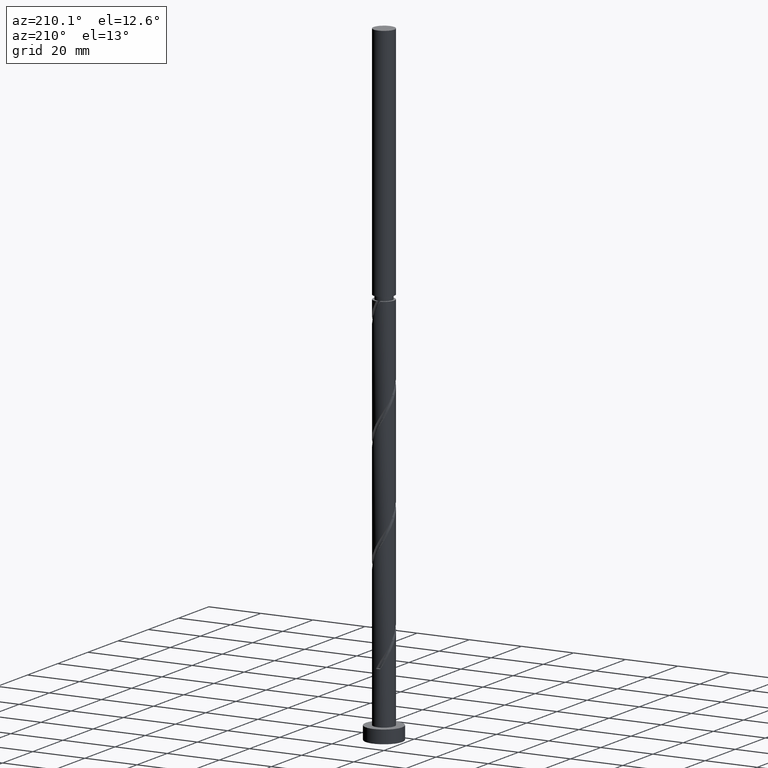
[diagram: clean part render]
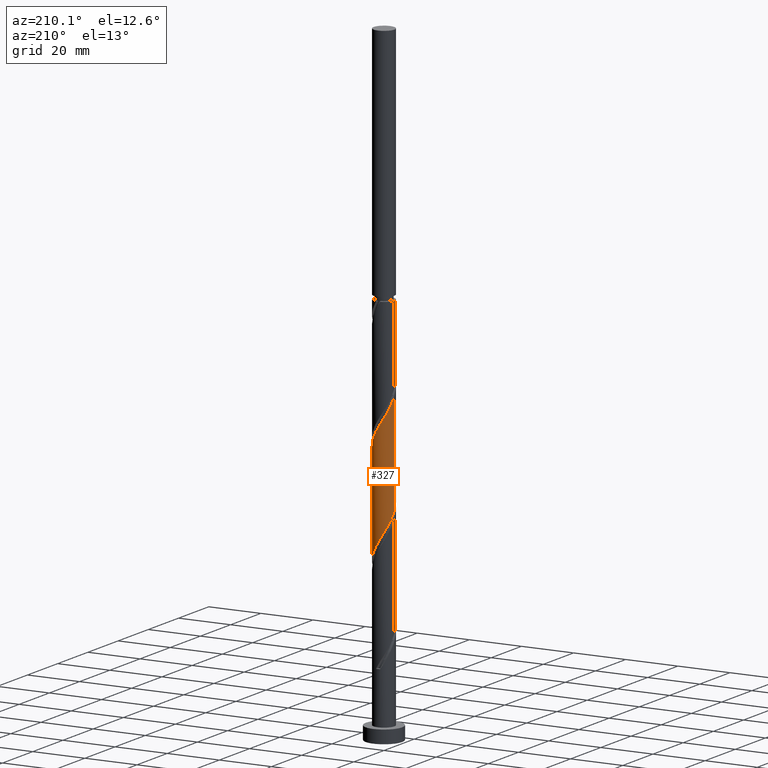
[diagram: same view with one face highlighted and labeled with its STEP entity id]
A machine part, auxiliary view. The second image highlights one B-rep face of the part: STEP entity #327.
In plain terms, the highlighted cylindrical surface (edge-blend (fillet) strip) has radius 4 mm, axis along (-0, -0, -1).
Its self-contained STEP definition (entity closure, byte-faithful):
#67 = AXIS2_PLACEMENT_3D ( 'NONE', #1332, #1054, #1616 ) ;
#72 = CARTESIAN_POINT ( 'NONE',  ( 2.003633787528303234, 3.462001104198990209, 103.3905300311497228 ) ) ;
#78 = EDGE_CURVE ( 'NONE', #202, #965, #1245, .T. ) ;
#82 = CARTESIAN_POINT ( 'NONE',  ( 0.1652574756069173367, 3.996584787885284928, 106.5956582362779415 ) ) ;
#119 = CARTESIAN_POINT ( 'NONE',  ( -3.383001745131677840, 2.134314689176838531, 74.54437618499586904 ) ) ;
#192 = CARTESIAN_POINT ( 'NONE',  ( -3.947525597521978291, 0.6457876252366431258, 116.2110428516625689 ) ) ;
#202 = VERTEX_POINT ( 'NONE', #1017 ) ;
#209 = CARTESIAN_POINT ( 'NONE',  ( -4.000000000000004441, 0.3250257541481827994, 116.7472663922685143 ) ) ;
#212 = CARTESIAN_POINT ( 'NONE',  ( 1.710977332407543017, 3.615599060734965953, 64.92899156961127005 ) ) ;
#216 = VECTOR ( 'NONE', #1804, 1000.000000000000000 ) ;
#220 = CARTESIAN_POINT ( 'NONE',  ( 3.487428383617967587, 2.018349830254855259, 60.92258131320101455 ) ) ;
#224 = CARTESIAN_POINT ( 'NONE',  ( -3.123849022751424620, 2.545085470315094689, 73.74309413371383926 ) ) ;
#233 = CARTESIAN_POINT ( 'NONE',  ( -2.773922925134609585, 2.881900693190634133, 72.94181208243178105 ) ) ;
#278 = EDGE_LOOP ( 'NONE', ( #1163, #1763, #817, #701 ) ) ;
#307 =( BOUNDED_CURVE ( )  B_SPLINE_CURVE ( 2, ( #506, #828, #973, #366, #1537, #1390, #119, #224, #233, #518, #1373, #1224, #1808, #631, #1093, #1657, #1107, #397, #212, #407, #1327, #667, #1340, #220, #1759, #1361, #935, #1631, #1083 ),
 .UNSPECIFIED., .F., .T. ) 
 B_SPLINE_CURVE_WITH_KNOTS ( ( 3, 2, 2, 2, 2, 2, 2, 2, 2, 2, 2, 2, 2, 2, 3 ),
 ( 0.6795271625973833274, 0.6826923076923077094, 0.6923076923076922906, 0.7019230769230768718, 0.7115384615384615641, 0.7211538461538461453, 0.7307692307692307265, 0.7403846153846154188, 0.7500000000000000000, 0.7596153846153845812, 0.7692307692307692735, 0.7788461538461538547, 0.7884615384615384359, 0.7980769230769231282, 0.8045271625973832164 ),
 .UNSPECIFIED. ) 
 CURVE ( )  GEOMETRIC_REPRESENTATION_ITEM ( )  RATIONAL_B_SPLINE_CURVE ( ( 0.9061636035682713031, 0.9069090390690599524, 0.9090909090909164991, 0.9024626128164200400, 0.9090909090909164991, 0.9024626128164200400, 0.9090909090909164991, 0.9024626128164200400, 0.9090909090909164991, 0.9024626128164200400, 0.9090909090909164991, 0.9024626128164200400, 0.9090909090909164991, 0.9024626128164200400, 0.9090909090909164991, 0.9024626128164200400, 0.9090909090909164991, 0.9024626128164200400, 0.9090909090909164991, 0.9024626128164200400, 0.9090909090909164991, 0.9024626128164200400, 0.9090909090909164991, 0.9024626128164200400, 0.9090909090909164991, 0.9024626128164200400, 0.9090909090909164991, 0.9046444828382766978, 0.9061636035682711920 ) ) 
 REPRESENTATION_ITEM ( '' )  );
#327 = ADVANCED_FACE ( 'NONE', ( #1745 ), #472, .T. ) ;
#335 = CARTESIAN_POINT ( 'NONE',  ( 3.642154467511937277, 1.723543908038581041, 99.38411977473944603 ) ) ;
#366 = CARTESIAN_POINT ( 'NONE',  ( -3.948791133313477530, 0.8018362386540665021, 76.94822233884204365 ) ) ;
#397 = CARTESIAN_POINT ( 'NONE',  ( 1.271964123916560219, 3.823349321684224034, 65.73027362089334247 ) ) ;
#402 = EDGE_CURVE ( 'NONE', #965, #1633, #1232, .T. ) ;
#407 = CARTESIAN_POINT ( 'NONE',  ( 2.149990540898524038, 3.407848799785711869, 64.12770951832921185 ) ) ;
#472 = CYLINDRICAL_SURFACE ( 'NONE', #67, 4.000000000000000000 ) ;
#477 = CARTESIAN_POINT ( 'NONE',  ( -0.3200157754540328137, 4.016650678315780709, 107.3969402875599712 ) ) ;
#495 = CARTESIAN_POINT ( 'NONE',  ( -3.869112783325352911, 1.125104012108400386, 115.4097608003804964 ) ) ;
#506 = CARTESIAN_POINT ( 'NONE',  ( -3.999999999999999112, 2.557465489192056693E-15, 78.27614421473393236 ) ) ;
#518 = CARTESIAN_POINT ( 'NONE',  ( -2.423996827517795438, 3.218715916066173133, 72.14053003114973706 ) ) ;
#536 = VECTOR ( 'NONE', #804, 1000.000000000000000 ) ;
#631 = CARTESIAN_POINT ( 'NONE',  ( -0.6505307266678607148, 3.976518897454785151, 68.93540182602151845 ) ) ;
#632 = VERTEX_POINT ( 'NONE', #1237 ) ;
#638 = CARTESIAN_POINT ( 'NONE',  ( -0.7959899496852962386, 3.920000000000005702, 108.1982223388420152 ) ) ;
#647 = EDGE_CURVE ( 'NONE', #202, #632, #942, .T. ) ;
#666 = CARTESIAN_POINT ( 'NONE',  ( -4.000000000000000000, 0.000000000000000000, 242.0000000000000000 ) ) ;
#667 = CARTESIAN_POINT ( 'NONE',  ( 2.903067322541106332, 2.794296492670033771, 62.52514541576513807 ) ) ;
#701 = ORIENTED_EDGE ( 'NONE', *, *, #402, .F. ) ;
#759 = CARTESIAN_POINT ( 'NONE',  ( 1.116900737103336150, 3.840902594893297994, 104.9930941337138393 ) ) ;
#768 = CARTESIAN_POINT ( 'NONE',  ( -3.195247853079538736, 2.406323161462450066, 113.0059146465343360 ) ) ;
#780 = CARTESIAN_POINT ( 'NONE',  ( -1.271964123916558886, 3.823349321684228919, 108.9995043901240734 ) ) ;
#804 = DIRECTION ( 'NONE',  ( -0.000000000000000000, -0.000000000000000000, -1.000000000000000000 ) ) ;
#817 = ORIENTED_EDGE ( 'NONE', *, *, #933, .F. ) ;
#828 = CARTESIAN_POINT ( 'NONE',  ( -4.000000000000000000, 0.1590925213470742450, 78.01197329910095846 ) ) ;
#906 = CARTESIAN_POINT ( 'NONE',  ( 1.583270747538804812, 3.705286292331806841, 104.1918120824317668 ) ) ;
#915 = CARTESIAN_POINT ( 'NONE',  ( -2.149990540898524038, 3.407848799785716309, 110.6020684926881756 ) ) ;
#933 = EDGE_CURVE ( 'NONE', #1633, #632, #307, .T. ) ;
#935 = CARTESIAN_POINT ( 'NONE',  ( 3.947525597521973406, 0.6457876252366410164, 58.51873515935486125 ) ) ;
#936 = CARTESIAN_POINT ( 'NONE',  ( 3.383001745131683169, 2.134314689176840307, 100.1854018260215469 ) ) ;
#942 = LINE ( 'NONE', #1354, #536 ) ;
#965 = VERTEX_POINT ( 'NONE', #1623 ) ;
#973 = CARTESIAN_POINT ( 'NONE',  ( -3.987364772516037270, 0.3176825001445915952, 77.74950439012408765 ) ) ;
#1017 = CARTESIAN_POINT ( 'NONE',  ( 4.000000000000003553, 5.683256642648979922E-16, 96.45363379628346934 ) ) ;
#1054 = DIRECTION ( 'NONE',  ( -0.000000000000000000, -0.000000000000000000, -1.000000000000000000 ) ) ;
#1059 = CARTESIAN_POINT ( 'NONE',  ( -3.678270583471661581, 1.571726921181631154, 114.6084787490984525 ) ) ;
#1066 = CARTESIAN_POINT ( 'NONE',  ( 3.987364772516044376, 0.3176825001445888197, 96.98027362089331405 ) ) ;
#1083 = CARTESIAN_POINT ( 'NONE',  ( 3.999999999999999112, -4.157750912253751939E-15, 57.44281088140058245 ) ) ;
#1093 = CARTESIAN_POINT ( 'NONE',  ( -0.1652574756069127293, 3.996584787885279599, 68.13411977473946024 ) ) ;
#1107 = CARTESIAN_POINT ( 'NONE',  ( 0.7959899496852975709, 3.919999999999999929, 66.53155567217537225 ) ) ;
#1163 = ORIENTED_EDGE ( 'NONE', *, *, #78, .F. ) ;
#1186 = CARTESIAN_POINT ( 'NONE',  ( 3.795472800412710956, 1.262690073346322217, 98.58283772345743046 ) ) ;
#1193 = CARTESIAN_POINT ( 'NONE',  ( 4.000000000000004441, 0.1590925213470719968, 96.71780471191641482 ) ) ;
#1203 = CARTESIAN_POINT ( 'NONE',  ( -2.903067322541108553, 2.794296492670036880, 112.2046325952522494 ) ) ;
#1212 = CARTESIAN_POINT ( 'NONE',  ( 3.948791133313481083, 0.8018362386540659470, 97.78155567217537225 ) ) ;
#1224 = CARTESIAN_POINT ( 'NONE',  ( -1.583270747538802148, 3.705286292331802844, 70.53796592858566328 ) ) ;
#1232 = LINE ( 'NONE', #666, #216 ) ;
#1237 = CARTESIAN_POINT ( 'NONE',  ( 3.999999999999999112, -4.157750912253752728E-15, 57.44281088140058245 ) ) ;
#1245 =( BOUNDED_CURVE ( )  B_SPLINE_CURVE ( 2, ( #1639, #1193, #1066, #1212, #1186, #335, #936, #1328, #1610, #1480, #72, #906, #759, #1769, #82, #477, #638, #780, #1781, #915, #1490, #1203, #768, #1470, #1059, #495, #192, #209, #1341 ),
 .UNSPECIFIED., .F., .T. ) 
 B_SPLINE_CURVE_WITH_KNOTS ( ( 3, 2, 2, 2, 2, 2, 2, 2, 2, 2, 2, 2, 2, 2, 3 ),
 ( 0.4295271625973833274, 0.4326923076923077094, 0.4423076923076922906, 0.4519230769230768718, 0.4615384615384615641, 0.4711538461538461453, 0.4807692307692307265, 0.4903846153846154188, 0.5000000000000000000, 0.5096153846153845812, 0.5192307692307691624, 0.5288461538461538547, 0.5384615384615384359, 0.5480769230769231282, 0.5545271625973833274 ),
 .UNSPECIFIED. ) 
 CURVE ( )  GEOMETRIC_REPRESENTATION_ITEM ( )  RATIONAL_B_SPLINE_CURVE ( ( 0.9061636035682768542, 0.9069090390690655035, 0.9090909090909219392, 0.9024626128164254801, 0.9090909090909219392, 0.9024626128164254801, 0.9090909090909219392, 0.9024626128164254801, 0.9090909090909219392, 0.9024626128164254801, 0.9090909090909219392, 0.9024626128164254801, 0.9090909090909219392, 0.9024626128164254801, 0.9090909090909219392, 0.9024626128164254801, 0.9090909090909219392, 0.9024626128164254801, 0.9090909090909219392, 0.9024626128164254801, 0.9090909090909219392, 0.9024626128164254801, 0.9090909090909219392, 0.9024626128164254801, 0.9090909090909219392, 0.9024626128164254801, 0.9090909090909219392, 0.9046444828382820269, 0.9061636035682768542 ) ) 
 REPRESENTATION_ITEM ( '' )  );
#1327 = CARTESIAN_POINT ( 'NONE',  ( 2.526528931719815851, 3.101072646227870155, 63.32642746704716785 ) ) ;
#1328 = CARTESIAN_POINT ( 'NONE',  ( 3.123849022751428617, 2.545085470315094689, 100.9866838773035909 ) ) ;
#1332 = CARTESIAN_POINT ( 'NONE',  ( 0.000000000000000000, 0.000000000000000000, 242.0000000000000000 ) ) ;
#1340 = CARTESIAN_POINT ( 'NONE',  ( 3.195247853079536071, 2.406323161462443849, 61.72386336448306565 ) ) ;
#1341 = CARTESIAN_POINT ( 'NONE',  ( -4.000000000000004441, -3.006143645190644516E-15, 117.2869671296168264 ) ) ;
#1354 = CARTESIAN_POINT ( 'NONE',  ( 4.000000000000000000, 4.898587196589412829E-16, 242.0000000000000000 ) ) ;
#1361 = CARTESIAN_POINT ( 'NONE',  ( 3.869112783325348470, 1.125104012108396390, 59.32001721063691235 ) ) ;
#1373 = CARTESIAN_POINT ( 'NONE',  ( -2.003633787528297905, 3.462001104198987544, 71.33924797986765043 ) ) ;
#1390 = CARTESIAN_POINT ( 'NONE',  ( -3.642154467511932392, 1.723543908038581929, 75.34565823627795567 ) ) ;
#1470 = CARTESIAN_POINT ( 'NONE',  ( -3.487428383617968919, 2.018349830254861477, 113.8071966978163800 ) ) ;
#1480 = CARTESIAN_POINT ( 'NONE',  ( 2.423996827517801655, 3.218715916066173133, 102.5892479798676220 ) ) ;
#1490 = CARTESIAN_POINT ( 'NONE',  ( -2.526528931719816740, 3.101072646227876817, 111.4033505439702481 ) ) ;
#1537 = CARTESIAN_POINT ( 'NONE',  ( -3.795472800412704295, 1.262690073346324438, 76.14694028755998545 ) ) ;
#1610 = CARTESIAN_POINT ( 'NONE',  ( 2.773922925134614914, 2.881900693190635909, 101.7879659285856491 ) ) ;
#1616 = DIRECTION ( 'NONE',  ( -1.000000000000000000, 0.000000000000000000, 0.000000000000000000 ) ) ;
#1623 = CARTESIAN_POINT ( 'NONE',  ( -4.000000000000004441, -3.006143645190644516E-15, 117.2869671296168264 ) ) ;
#1631 = CARTESIAN_POINT ( 'NONE',  ( 3.999999999999999112, 0.3250257541481859636, 57.98251161874891579 ) ) ;
#1633 = VERTEX_POINT ( 'NONE', #1734 ) ;
#1639 = CARTESIAN_POINT ( 'NONE',  ( 4.000000000000003553, 5.683256642648979922E-16, 96.45363379628346934 ) ) ;
#1657 = CARTESIAN_POINT ( 'NONE',  ( 0.3200157754540353117, 4.016650678315776268, 67.33283772345743046 ) ) ;
#1734 = CARTESIAN_POINT ( 'NONE',  ( -3.999999999999999112, 2.557465489192056693E-15, 78.27614421473393236 ) ) ;
#1745 = FACE_OUTER_BOUND ( 'NONE', #278, .T. ) ;
#1759 = CARTESIAN_POINT ( 'NONE',  ( 3.678270583471656252, 1.571726921181627379, 60.12129926191894214 ) ) ;
#1763 = ORIENTED_EDGE ( 'NONE', *, *, #647, .T. ) ;
#1769 = CARTESIAN_POINT ( 'NONE',  ( 0.6505307266678636013, 3.976518897454790036, 105.7943761849958406 ) ) ;
#1781 = CARTESIAN_POINT ( 'NONE',  ( -1.710977332407541684, 3.615599060734972170, 109.8007864414061601 ) ) ;
#1804 = DIRECTION ( 'NONE',  ( -0.000000000000000000, -0.000000000000000000, -1.000000000000000000 ) ) ;
#1808 = CARTESIAN_POINT ( 'NONE',  ( -1.116900737103331265, 3.840902594893293109, 69.73668387730359086 ) ) ;